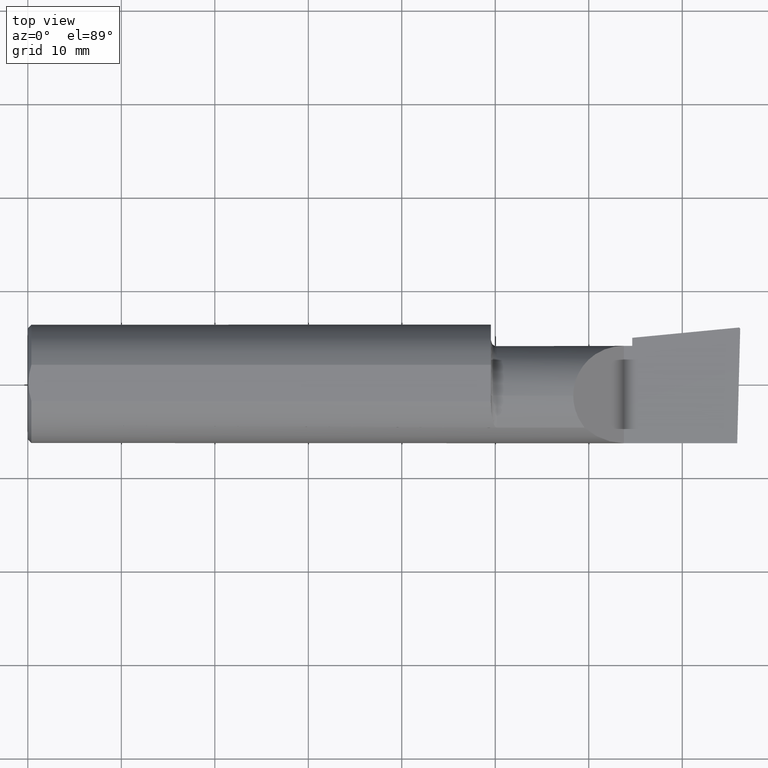
[diagram: clean part render]
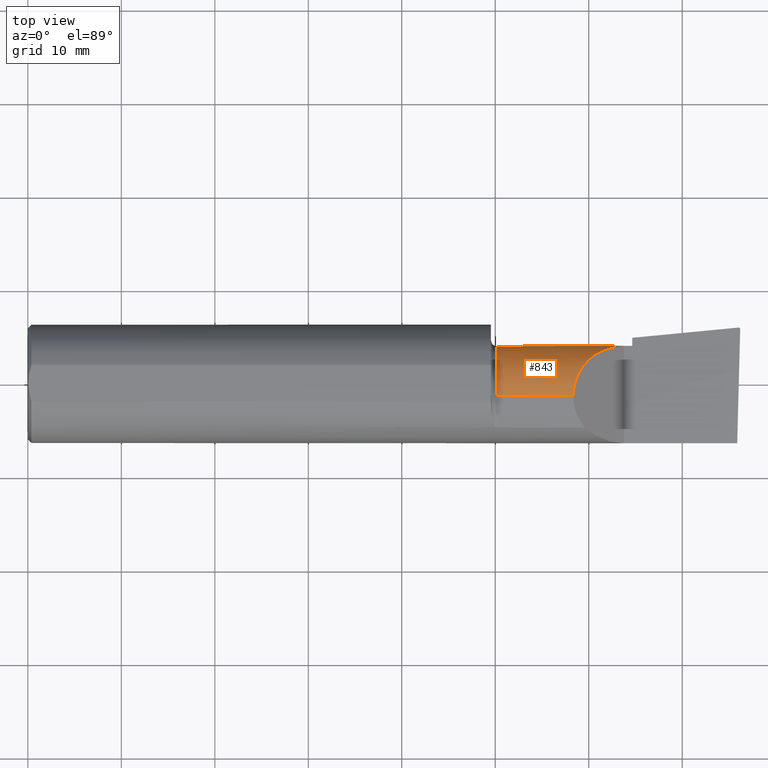
[diagram: same view with one face highlighted and labeled with its STEP entity id]
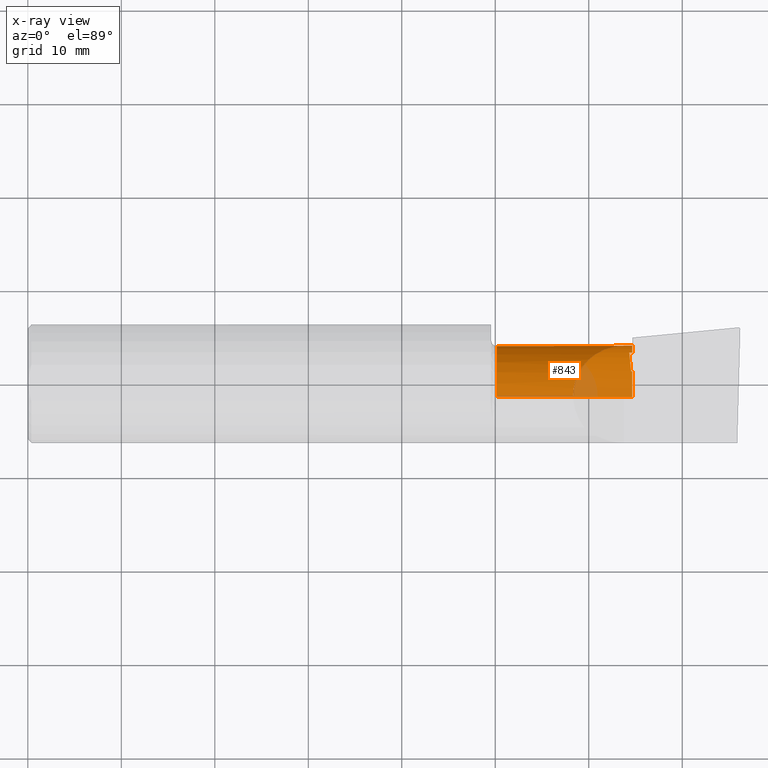
[diagram: x-ray of the same camera — body ghosted, the highlighted face saturated]
A machine part, top view. The second image highlights one B-rep face of the part: STEP entity #843.
The next image is the same camera in x-ray: the body ghosted, the highlighted face saturated — about 10% of this face is hidden behind the body in this view.
In plain terms, the highlighted cylindrical surface (partial cylindrical patch) has radius 5.414 mm, axis along (-1, -0, -0).
Its self-contained STEP definition (entity closure, byte-faithful):
#18 = DIRECTION ( 'NONE',  ( -1.000000000000000000, -0.000000000000000000, -0.000000000000000000 ) ) ;
#23 = CIRCLE ( 'NONE', #605, 0.2131499999999999784 ) ;
#30 = VERTEX_POINT ( 'NONE', #566 ) ;
#35 = DIRECTION ( 'NONE',  ( 0.000000000000000000, 0.000000000000000000, 1.000000000000000000 ) ) ;
#43 = CARTESIAN_POINT ( 'NONE',  ( 2.540349815208492235, 0.05592018782259811777, -0.1832193089843148770 ) ) ;
#48 = ORIENTED_EDGE ( 'NONE', *, *, #201, .F. ) ;
#52 = CIRCLE ( 'NONE', #542, 0.2131499999999999784 ) ;
#53 = CARTESIAN_POINT ( 'NONE',  ( 2.534569588231498916, 0.1159501401920711577, -0.1355866241796522820 ) ) ;
#61 = VERTEX_POINT ( 'NONE', #312 ) ;
#75 = EDGE_CURVE ( 'NONE', #379, #709, #365, .T. ) ;
#109 = ORIENTED_EDGE ( 'NONE', *, *, #454, .T. ) ;
#123 = ORIENTED_EDGE ( 'NONE', *, *, #654, .T. ) ;
#141 = CYLINDRICAL_SURFACE ( 'NONE', #550, 0.2131499999999999506 ) ;
#155 = CIRCLE ( 'NONE', #512, 0.2131499999999998951 ) ;
#161 = CARTESIAN_POINT ( 'NONE',  ( 1.975000000000000089, -0.05299999999999998462, 0.000000000000000000 ) ) ;
#171 = VERTEX_POINT ( 'NONE', #516 ) ;
#201 = EDGE_CURVE ( 'NONE', #644, #800, #574, .T. ) ;
#220 = VECTOR ( 'NONE', #368, 39.37007874015748143 ) ;
#223 = CARTESIAN_POINT ( 'NONE',  ( 2.545000000000000373, 0.05698775240724714836, -0.1825804393148457716 ) ) ;
#231 = DIRECTION ( 'NONE',  ( 0.000000000000000000, 0.000000000000000000, 1.000000000000000000 ) ) ;
#237 = CARTESIAN_POINT ( 'NONE',  ( 2.543466858877807990, 0.05663251955088049322, -0.1827944341085903646 ) ) ;
#240 = VERTEX_POINT ( 'NONE', #597 ) ;
#272 = ORIENTED_EDGE ( 'NONE', *, *, #718, .T. ) ;
#278 = ORIENTED_EDGE ( 'NONE', *, *, #553, .F. ) ;
#279 = CARTESIAN_POINT ( 'NONE',  ( 2.510000000000000231, 0.1601499999999999035, 6.000769315822035917E-17 ) ) ;
#287 = CARTESIAN_POINT ( 'NONE',  ( 2.385139620819824113, 0.1601499999999999591, 0.1248603791801747992 ) ) ;
#289 = VECTOR ( 'NONE', #475, 39.37007874015748143 ) ;
#290 = EDGE_LOOP ( 'NONE', ( #663, #272, #548, #278, #123, #359, #366, #48, #109, #356 ) ) ;
#299 =( BOUNDED_CURVE ( )  B_SPLINE_CURVE ( 3, ( #755, #354, #287, #484 ),
 .UNSPECIFIED., .F., .T. ) 
 B_SPLINE_CURVE_WITH_KNOTS ( ( 4, 4 ),
 ( 0.000000000000000000, 1.570796326794896558 ),
 .UNSPECIFIED. ) 
 CURVE ( )  GEOMETRIC_REPRESENTATION_ITEM ( )  RATIONAL_B_SPLINE_CURVE ( ( 1.000000000000000000, 0.8047378541243649375, 0.8047378541243649375, 1.000000000000000000 ) ) 
 REPRESENTATION_ITEM ( '' )  );
#303 = DIRECTION ( 'NONE',  ( -1.000000000000000000, -0.000000000000000000, -0.000000000000000000 ) ) ;
#312 = CARTESIAN_POINT ( 'NONE',  ( 1.975000000000000089, -0.05299999999999996381, -0.2131499999999998951 ) ) ;
#315 = CARTESIAN_POINT ( 'NONE',  ( 2.540349815208492235, 0.05592018782259811777, -0.1832193089843148770 ) ) ;
#319 = CARTESIAN_POINT ( 'NONE',  ( 2.541044210672215975, 0.1333523194825135538, -0.1034740570574035623 ) ) ;
#321 = CARTESIAN_POINT ( 'NONE',  ( 2.537149611766882362, 0.08915557130098392125, -0.1634615431086029191 ) ) ;
#335 = DIRECTION ( 'NONE',  ( 0.000000000000000000, 0.000000000000000000, 1.000000000000000000 ) ) ;
#336 = CARTESIAN_POINT ( 'NONE',  ( 2.545000000000000373, 0.1328281892403430642, -0.1044069278527782890 ) ) ;
#347 = EDGE_CURVE ( 'NONE', #618, #171, #770, .T. ) ;
#354 = CARTESIAN_POINT ( 'NONE',  ( 2.296849999999997838, 0.07186037918017477988, 0.2131500000000000061 ) ) ;
#356 = ORIENTED_EDGE ( 'NONE', *, *, #75, .F. ) ;
#359 = ORIENTED_EDGE ( 'NONE', *, *, #347, .T. ) ;
#365 =( BOUNDED_CURVE ( )  B_SPLINE_CURVE ( 3, ( #637, #237, #696, #43 ),
 .UNSPECIFIED., .F., .T. ) 
 B_SPLINE_CURVE_WITH_KNOTS ( ( 4, 4 ),
 ( 3.399950576546885816, 3.405787439796292393 ),
 .UNSPECIFIED. ) 
 CURVE ( )  GEOMETRIC_REPRESENTATION_ITEM ( )  RATIONAL_B_SPLINE_CURVE ( ( 1.000000000000000000, 0.9999971609209656886, 0.9999971609209656886, 1.000000000000000000 ) ) 
 REPRESENTATION_ITEM ( '' )  );
#366 = ORIENTED_EDGE ( 'NONE', *, *, #565, .T. ) ;
#368 = DIRECTION ( 'NONE',  ( 1.000000000000000000, 0.000000000000000000, 0.000000000000000000 ) ) ;
#370 = DIRECTION ( 'NONE',  ( -1.000000000000000000, -0.000000000000000000, -0.000000000000000000 ) ) ;
#379 = VERTEX_POINT ( 'NONE', #223 ) ;
#430 = VERTEX_POINT ( 'NONE', #854 ) ;
#432 = CARTESIAN_POINT ( 'NONE',  ( 1.878049121262586821E-31, 0.1601499999999999313, 7.172378389328440442E-16 ) ) ;
#441 = CARTESIAN_POINT ( 'NONE',  ( 2.545000000000000373, 0.1328281892403430642, -0.1044069278527782890 ) ) ;
#454 = EDGE_CURVE ( 'NONE', #644, #709, #627, .T. ) ;
#463 = LINE ( 'NONE', #600, #289 ) ;
#475 = DIRECTION ( 'NONE',  ( -1.000000000000000000, -0.000000000000000000, -0.000000000000000000 ) ) ;
#484 = CARTESIAN_POINT ( 'NONE',  ( 2.510000000000000231, 0.1601499999999999035, 6.000769315822035917E-17 ) ) ;
#512 = AXIS2_PLACEMENT_3D ( 'NONE', #161, #303, #231 ) ;
#516 = CARTESIAN_POINT ( 'NONE',  ( 2.545000000000000373, 0.1601499999999999591, 7.172378389328441428E-16 ) ) ;
#530 = CARTESIAN_POINT ( 'NONE',  ( 2.532795049205048166, 0.1343794326159070407, -0.1015966078791043781 ) ) ;
#532 = CARTESIAN_POINT ( 'NONE',  ( 0.000000000000000000, -0.05299999999999998462, 0.000000000000000000 ) ) ;
#542 = AXIS2_PLACEMENT_3D ( 'NONE', #809, #18, #335 ) ;
#548 = ORIENTED_EDGE ( 'NONE', *, *, #692, .F. ) ;
#549 = CARTESIAN_POINT ( 'NONE',  ( 2.540349815208492235, 0.05592018782259811777, -0.1832193089843148770 ) ) ;
#550 = AXIS2_PLACEMENT_3D ( 'NONE', #532, #810, #805 ) ;
#553 = EDGE_CURVE ( 'NONE', #240, #30, #463, .T. ) ;
#565 = EDGE_CURVE ( 'NONE', #171, #800, #52, .T. ) ;
#566 = CARTESIAN_POINT ( 'NONE',  ( 1.975000000000000089, -0.05299999999999998462, 0.2131499999999998951 ) ) ;
#574 =( BOUNDED_CURVE ( )  B_SPLINE_CURVE ( 3, ( #584, #859, #319, #336 ),
 .UNSPECIFIED., .F., .T. ) 
 B_SPLINE_CURVE_WITH_KNOTS ( ( 4, 4 ),
 ( 2.868174658477177008, 2.883234730632701748 ),
 .UNSPECIFIED. ) 
 CURVE ( )  GEOMETRIC_REPRESENTATION_ITEM ( )  RATIONAL_B_SPLINE_CURVE ( ( 1.000000000000000000, 0.9999810996081960335, 0.9999810996081960335, 1.000000000000000000 ) ) 
 REPRESENTATION_ITEM ( '' )  );
#584 = CARTESIAN_POINT ( 'NONE',  ( 2.532795049205048166, 0.1343794326159070407, -0.1015966078791043781 ) ) ;
#597 = CARTESIAN_POINT ( 'NONE',  ( 2.296849999999997838, -0.05299999999999998462, 0.2131499999999999506 ) ) ;
#600 = CARTESIAN_POINT ( 'NONE',  ( 0.000000000000000000, -0.05299999999999998462, 0.2131499999999999506 ) ) ;
#605 = AXIS2_PLACEMENT_3D ( 'NONE', #750, #619, #35 ) ;
#618 = VERTEX_POINT ( 'NONE', #279 ) ;
#619 = DIRECTION ( 'NONE',  ( -1.000000000000000000, -0.000000000000000000, -0.000000000000000000 ) ) ;
#627 =( BOUNDED_CURVE ( )  B_SPLINE_CURVE ( 3, ( #846, #53, #321, #315 ),
 .UNSPECIFIED., .F., .T. ) 
 B_SPLINE_CURVE_WITH_KNOTS ( ( 4, 4 ),
 ( 0.4968328636548212107, 1.034445644973938316 ),
 .UNSPECIFIED. ) 
 CURVE ( )  GEOMETRIC_REPRESENTATION_ITEM ( )  RATIONAL_B_SPLINE_CURVE ( ( 1.000000000000000000, 0.9760590552538849218, 0.9760590552538849218, 1.000000000000000000 ) ) 
 REPRESENTATION_ITEM ( '' )  );
#637 = CARTESIAN_POINT ( 'NONE',  ( 2.545000000000000373, 0.05698775240724714836, -0.1825804393148457716 ) ) ;
#644 = VERTEX_POINT ( 'NONE', #530 ) ;
#654 = EDGE_CURVE ( 'NONE', #240, #618, #299, .T. ) ;
#663 = ORIENTED_EDGE ( 'NONE', *, *, #751, .T. ) ;
#665 = FACE_OUTER_BOUND ( 'NONE', #290, .T. ) ;
#676 = VECTOR ( 'NONE', #370, 39.37007874015748143 ) ;
#685 = LINE ( 'NONE', #825, #676 ) ;
#692 = EDGE_CURVE ( 'NONE', #30, #61, #155, .T. ) ;
#696 = CARTESIAN_POINT ( 'NONE',  ( 2.541916792879880926, 0.05627666367902792177, -0.1830073912696823790 ) ) ;
#709 = VERTEX_POINT ( 'NONE', #549 ) ;
#718 = EDGE_CURVE ( 'NONE', #430, #61, #685, .T. ) ;
#750 = CARTESIAN_POINT ( 'NONE',  ( 2.545000000000000373, -0.05299999999999998462, 0.000000000000000000 ) ) ;
#751 = EDGE_CURVE ( 'NONE', #379, #430, #23, .T. ) ;
#755 = CARTESIAN_POINT ( 'NONE',  ( 2.296849999999997838, -0.05299999999999998462, 0.2131499999999999506 ) ) ;
#770 = LINE ( 'NONE', #432, #220 ) ;
#800 = VERTEX_POINT ( 'NONE', #441 ) ;
#805 = DIRECTION ( 'NONE',  ( 0.000000000000000000, 0.000000000000000000, 1.000000000000000000 ) ) ;
#809 = CARTESIAN_POINT ( 'NONE',  ( 2.545000000000000373, -0.05299999999999998462, 0.000000000000000000 ) ) ;
#810 = DIRECTION ( 'NONE',  ( -1.000000000000000000, -0.000000000000000000, -0.000000000000000000 ) ) ;
#825 = CARTESIAN_POINT ( 'NONE',  ( 0.000000000000000000, -0.05299999999999996381, -0.2131499999999999506 ) ) ;
#843 = ADVANCED_FACE ( 'NONE', ( #665 ), #141, .T. ) ;
#846 = CARTESIAN_POINT ( 'NONE',  ( 2.532795049205048166, 0.1343794326159070407, -0.1015966078791043781 ) ) ;
#854 = CARTESIAN_POINT ( 'NONE',  ( 2.545000000000000373, -0.05299999999999998462, -0.2131499999999999229 ) ) ;
#859 = CARTESIAN_POINT ( 'NONE',  ( 2.536975816846330112, 0.1338694103809223712, -0.1025372660271280933 ) ) ;